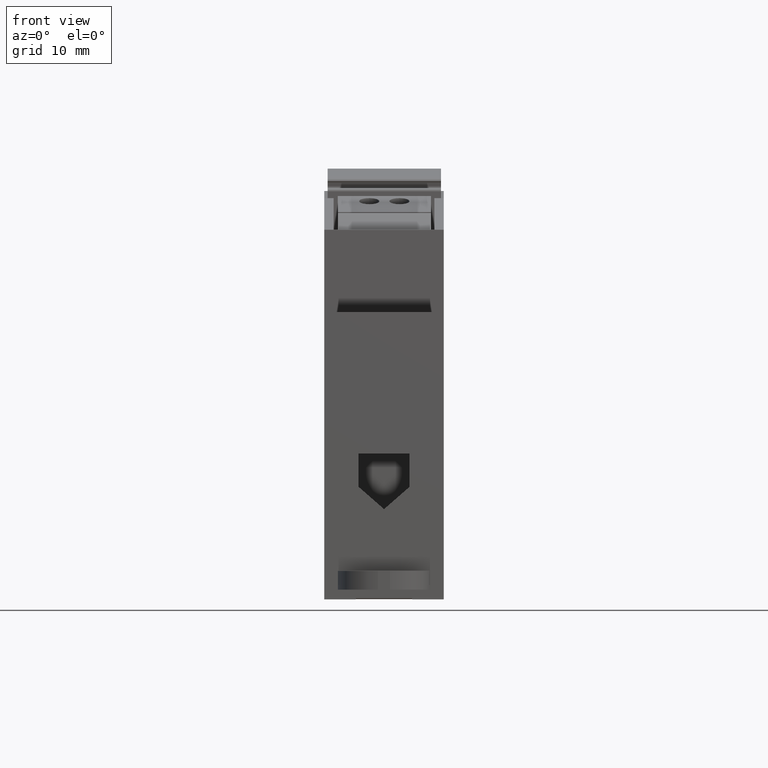
[diagram: clean part render]
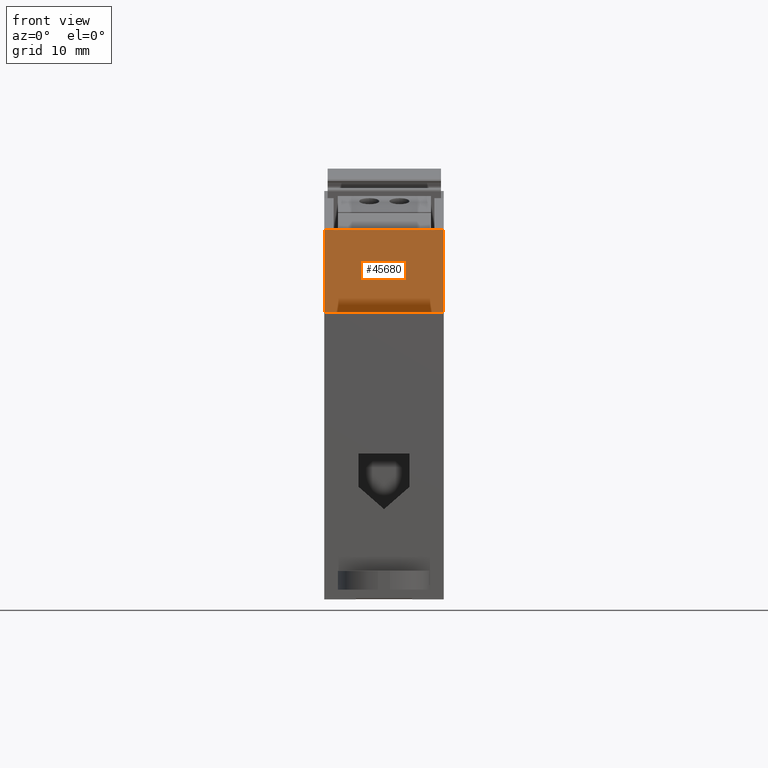
[diagram: same view with one face highlighted and labeled with its STEP entity id]
A machine part, front view. The second image highlights one B-rep face of the part: STEP entity #45680.
In plain terms, the highlighted planar face has unit normal (0, -1, 0).
Its self-contained STEP definition (entity closure, byte-faithful):
#360=CARTESIAN_POINT('',(-70.252305,-95.309094,-17.8));
#370=VERTEX_POINT('',#360);
#400=CARTESIAN_POINT('',(-70.252305,-95.309094,-17.8));
#410=DIRECTION('',(0.,-1.,0.));
#420=VECTOR('',#410,1.);
#430=LINE('',#400,#420);
#440=CARTESIAN_POINT('',(-70.252305,-107.609094,-17.8));
#450=VERTEX_POINT('',#440);
#460=EDGE_CURVE('',#370,#450,#430,.T.);
#2770=CARTESIAN_POINT('',(-70.252305,-107.609094,0.));
#2780=VERTEX_POINT('',#2770);
#2810=CARTESIAN_POINT('',(-70.252305,-95.309094,0.));
#2820=DIRECTION('',(0.,-1.,0.));
#2830=VECTOR('',#2820,1.);
#2840=LINE('',#2810,#2830);
#2850=CARTESIAN_POINT('',(-70.252305,-95.309094,0.));
#2860=VERTEX_POINT('',#2850);
#2870=EDGE_CURVE('',#2860,#2780,#2840,.T.);
#45050=CARTESIAN_POINT('',(-70.252305,-107.609094,-17.8));
#45060=DIRECTION('',(0.,0.,1.));
#45070=VECTOR('',#45060,1.);
#45080=LINE('',#45050,#45070);
#45090=EDGE_CURVE('',#450,#2780,#45080,.T.);
#45520=CARTESIAN_POINT('',(-70.252305,-94.181375323269,-4.));
#45530=DIRECTION('',(-1.,0.,0.));
#45540=DIRECTION('',(0.,-1.,0.));
#45550=AXIS2_PLACEMENT_3D('',#45520,#45530,#45540);
#45560=PLANE('',#45550);
#45570=ORIENTED_EDGE('',*,*,#2870,.F.);
#45580=ORIENTED_EDGE('',*,*,#45090,.T.);
#45590=ORIENTED_EDGE('',*,*,#460,.T.);
#45600=CARTESIAN_POINT('',(-70.252305,-95.309094,-17.8));
#45610=DIRECTION('',(0.,0.,-1.));
#45620=VECTOR('',#45610,1.);
#45630=LINE('',#45600,#45620);
#45640=EDGE_CURVE('',#2860,#370,#45630,.T.);
#45650=ORIENTED_EDGE('',*,*,#45640,.T.);
#45660=EDGE_LOOP('',(#45650,#45590,#45580,#45570));
#45670=FACE_OUTER_BOUND('',#45660,.T.);
#45680=ADVANCED_FACE('',(#45670),#45560,.T.);